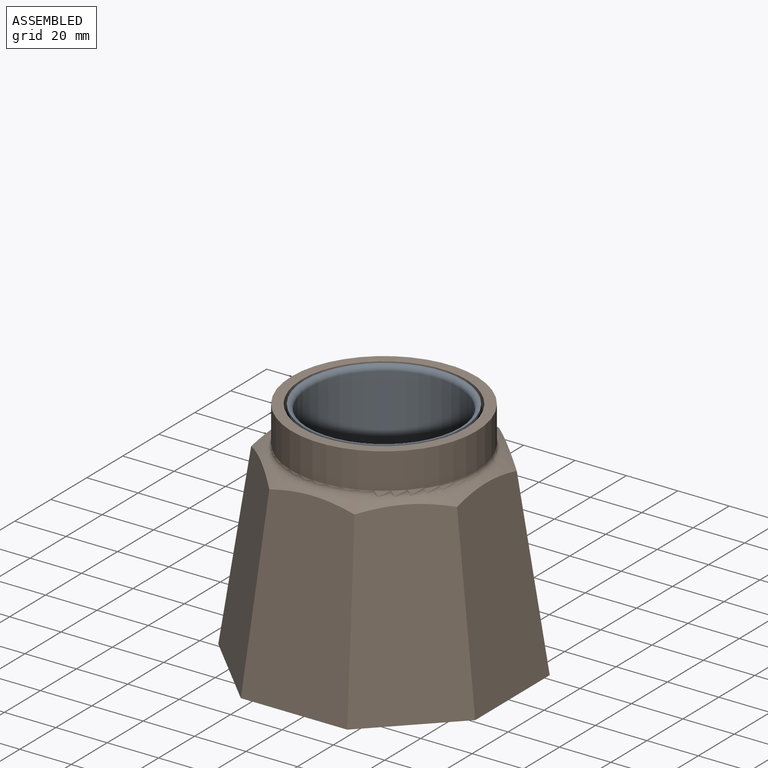
[diagram: assembled view]
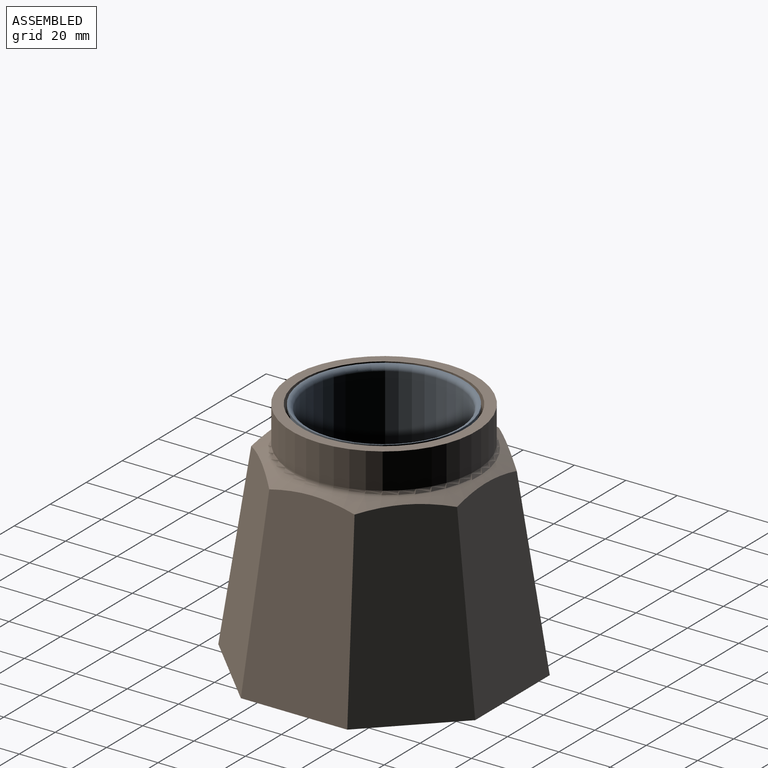
[diagram: assembled view, second angle]
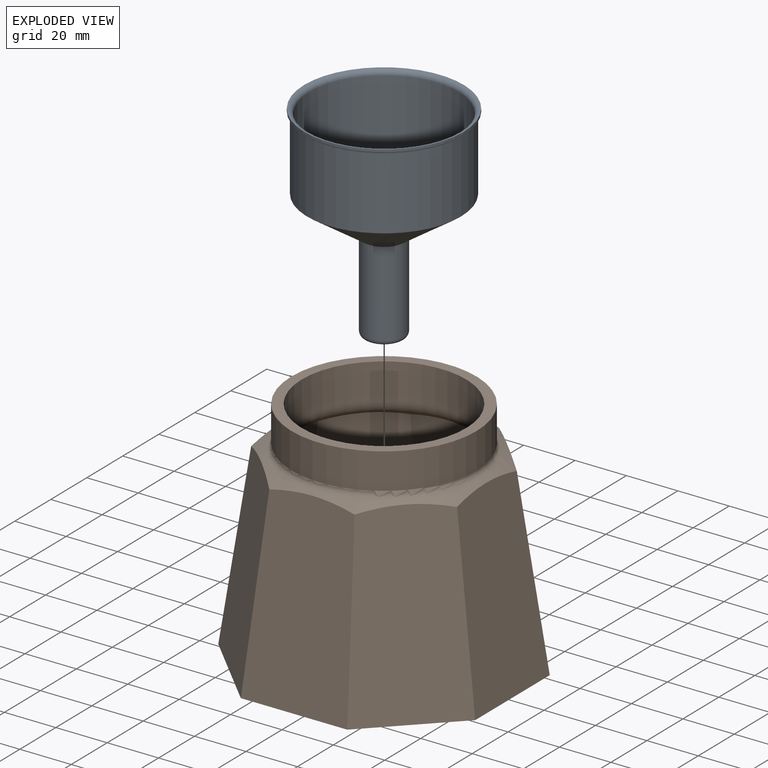
[diagram: exploded view]
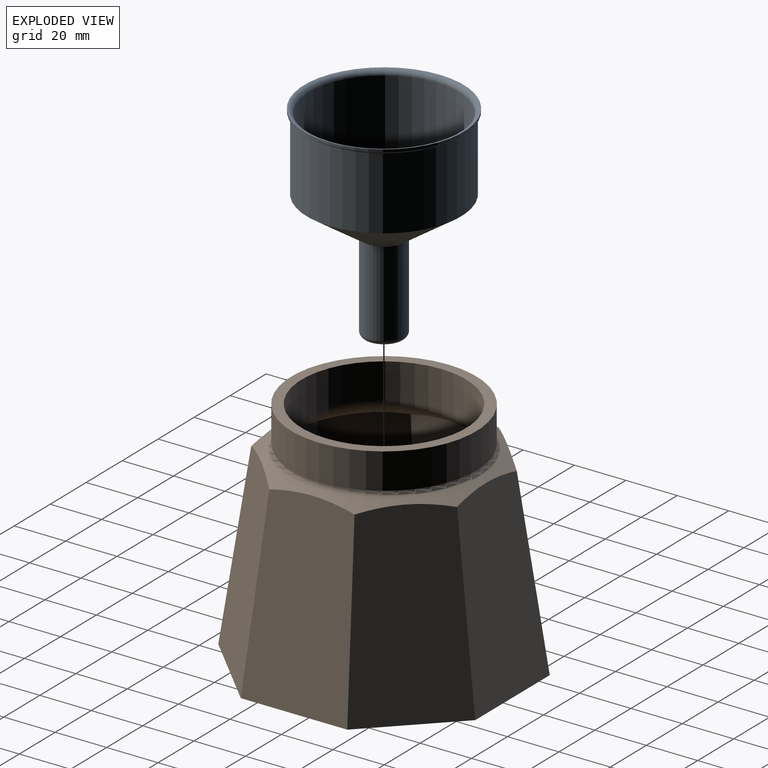
[diagram: exploded view, second angle]
ASSEMBLY  parts=2 mates=2
PART A: 113 faces, bbox 67.1x67.1x80 mm
  f0: cone r=30mm half-angle=55.7deg, axis (0,0,1), area 3178.8mm2, adj f1,f13
  f1: cylinder r=30mm len=60mm, axis (0,0,1), area 5277.9mm2, adj f0,f2
  f2: torus R=31mm, axis (0,0,1), area 299.7mm2, adj f1,f3
  f3: cylinder r=31mm len=62mm, axis (0,0,1), area 194.8mm2, adj f2,f4
  f4: torus R=31mm, axis (0,0,1), area 586.8mm2, adj f3,f5
  f5: cylinder r=29mm len=58mm, axis (0,0,1), area 4823.4mm2, adj f4,f15
  f6: cone r=7mm half-angle=55.7deg, axis (0,0,1), area 3011.4mm2, adj f7,f14
  f7: cylinder r=7mm len=33.53mm, axis (0,0,1), area 1474.7mm2, adj f6,f8
  f8: torus R=6mm, axis (0,0,1), area 65.5mm2, adj f7,f9
  f9: plane 12x12mm, normal (0,0,1), area 34.6mm2, adj f8,f10
  f10: cylinder r=5mm len=10mm, axis (0,0,1), area 31.4mm2, adj f9,f11
  f11: plane 12x12mm, normal (0,0,-1), area 34.6mm2, adj f10,f12
  f12: torus R=6mm, axis (0,0,1), area 143.6mm2, adj f11,f13
  f13: cylinder r=8mm len=33mm, axis (0,0,1), area 1658.8mm2, adj f0,f12
  f14: plane 58x58mm, normal (0,0,-1), area 2565.9mm2, adj f6,f16,f17,f18,f19,f20,f21,f22
  f15: plane 58x58mm, normal (0,0,1), area 2565.9mm2, adj f5,f16,f17,f18,f19,f20,f21,f22
  f16: cylinder r=0.5mm len=1mm, axis (0,0,1), area 3.1mm2, adj f14,f15
  f17: cylinder r=0.5mm len=1mm, axis (0,0,1), area 3.1mm2, adj f14,f15
  f18: cylinder r=0.5mm len=1mm, axis (0,0,1), area 3.1mm2, adj f14,f15
  f19: cylinder r=0.5mm len=1mm, axis (0,0,1), area 3.1mm2, adj f14,f15
  f20: cylinder r=0.5mm len=1mm, axis (0,0,1), area 3.1mm2, adj f14,f15
  f21: cylinder r=0.5mm len=1mm, axis (0,0,1), area 3.1mm2, adj f14,f15
  f22: cylinder r=0.5mm len=1mm, axis (0,0,1), area 3.1mm2, adj f14,f15
  f23: cylinder r=0.5mm len=1mm, axis (0,0,1), area 3.1mm2, adj f14,f15
  f24: cylinder r=0.5mm len=1mm, axis (0,0,1), area 3.1mm2, adj f14,f15
  f25: cylinder r=0.5mm len=1mm, axis (0,0,1), area 3.1mm2, adj f14,f15
  f26: cylinder r=0.5mm len=1mm, axis (0,0,1), area 3.1mm2, adj f14,f15
  f27: cylinder r=0.5mm len=1mm, axis (0,0,1), area 3.1mm2, adj f14,f15
  f28: cylinder r=0.5mm len=1mm, axis (0,0,1), area 3.1mm2, adj f14,f15
  f29: cylinder r=0.5mm len=1mm, axis (0,0,1), area 3.1mm2, adj f14,f15
  f30: cylinder r=0.5mm len=1mm, axis (0,0,1), area 3.1mm2, adj f14,f15
  f31: cylinder r=0.5mm len=1mm, axis (0,0,1), area 3.1mm2, adj f14,f15
  f32: cylinder r=0.5mm len=1mm, axis (0,0,1), area 3.1mm2, adj f14,f15
  f33: cylinder r=0.5mm len=1mm, axis (0,0,1), area 3.1mm2, adj f14,f15
  f34: cylinder r=0.5mm len=1mm, axis (0,0,1), area 3.1mm2, adj f14,f15
  f35: cylinder r=0.5mm len=1mm, axis (0,0,1), area 3.1mm2, adj f14,f15
  f36: cylinder r=0.5mm len=1mm, axis (0,0,1), area 3.1mm2, adj f14,f15
  f37: cylinder r=0.5mm len=1mm, axis (0,0,1), area 3.1mm2, adj f14,f15
  f38: cylinder r=0.5mm len=1mm, axis (0,0,1), area 3.1mm2, adj f14,f15
  f39: cylinder r=0.5mm len=1mm, axis (0,0,1), area 3.1mm2, adj f14,f15
  f40: cylinder r=0.5mm len=1mm, axis (0,0,1), area 3.1mm2, adj f14,f15
  f41: cylinder r=0.5mm len=1mm, axis (0,0,1), area 3.1mm2, adj f14,f15
  f42: cylinder r=0.5mm len=1mm, axis (0,0,1), area 3.1mm2, adj f14,f15
  f43: cylinder r=0.5mm len=1mm, axis (0,0,1), area 3.1mm2, adj f14,f15
  f44: cylinder r=0.5mm len=1mm, axis (0,0,1), area 3.1mm2, adj f14,f15
  f45: cylinder r=0.5mm len=1mm, axis (0,0,1), area 3.1mm2, adj f14,f15
  f46: cylinder r=0.5mm len=1mm, axis (0,0,1), area 3.1mm2, adj f14,f15
  f47: cylinder r=0.5mm len=1mm, axis (0,0,1), area 3.1mm2, adj f14,f15
  f48: cylinder r=0.5mm len=1mm, axis (0,0,1), area 3.1mm2, adj f14,f15
  f49: cylinder r=0.5mm len=1mm, axis (0,0,1), area 3.1mm2, adj f14,f15
  f50: cylinder r=0.5mm len=1mm, axis (0,0,1), area 3.1mm2, adj f14,f15
  f51: cylinder r=0.5mm len=1mm, axis (0,0,1), area 3.1mm2, adj f14,f15
  f52: cylinder r=0.5mm len=1mm, axis (0,0,1), area 3.1mm2, adj f14,f15
  f53: cylinder r=0.5mm len=1mm, axis (0,0,1), area 3.1mm2, adj f14,f15
  f54: cylinder r=0.5mm len=1mm, axis (0,0,1), area 3.1mm2, adj f14,f15
  f55: cylinder r=0.5mm len=1mm, axis (0,0,1), area 3.1mm2, adj f14,f15
  f56: cylinder r=0.5mm len=1mm, axis (0,0,1), area 3.1mm2, adj f14,f15
  f57: cylinder r=0.5mm len=1mm, axis (0,0,1), area 3.1mm2, adj f14,f15
  f58: cylinder r=0.5mm len=1mm, axis (0,0,1), area 3.1mm2, adj f14,f15
  f59: cylinder r=0.5mm len=1mm, axis (0,0,1), area 3.1mm2, adj f14,f15
  f60: cylinder r=0.5mm len=1mm, axis (0,0,1), area 3.1mm2, adj f14,f15
  f61: cylinder r=0.5mm len=1mm, axis (0,0,1), area 3.1mm2, adj f14,f15
  f62: cylinder r=0.5mm len=1mm, axis (0,0,1), area 3.1mm2, adj f14,f15
  f63: cylinder r=0.5mm len=1mm, axis (0,0,1), area 3.1mm2, adj f14,f15
  f64: cylinder r=0.5mm len=1mm, axis (0,0,1), area 3.1mm2, adj f14,f15
  f65: cylinder r=0.5mm len=1mm, axis (0,0,1), area 3.1mm2, adj f14,f15
  f66: cylinder r=0.5mm len=1mm, axis (0,0,1), area 3.1mm2, adj f14,f15
  f67: cylinder r=0.5mm len=1mm, axis (0,0,1), area 3.1mm2, adj f14,f15
  f68: cylinder r=0.5mm len=1mm, axis (0,0,1), area 3.1mm2, adj f14,f15
  f69: cylinder r=0.5mm len=1mm, axis (0,0,1), area 3.1mm2, adj f14,f15
  f70: cylinder r=0.5mm len=1mm, axis (0,0,1), area 3.1mm2, adj f14,f15
  f71: cylinder r=0.5mm len=1mm, axis (0,0,1), area 3.1mm2, adj f14,f15
  f72: cylinder r=0.5mm len=1mm, axis (0,0,1), area 3.1mm2, adj f14,f15
  f73: cylinder r=0.5mm len=1mm, axis (0,0,1), area 3.1mm2, adj f14,f15
  f74: cylinder r=0.5mm len=1mm, axis (0,0,1), area 3.1mm2, adj f14,f15
  f75: cylinder r=0.5mm len=1mm, axis (0,0,1), area 3.1mm2, adj f14,f15
  f76: cylinder r=0.5mm len=1mm, axis (0,0,1), area 3.1mm2, adj f14,f15
  f77: cylinder r=0.5mm len=1mm, axis (0,0,1), area 3.1mm2, adj f14,f15
  f78: cylinder r=0.5mm len=1mm, axis (0,0,1), area 3.1mm2, adj f14,f15
  f79: cylinder r=0.5mm len=1mm, axis (0,0,1), area 3.1mm2, adj f14,f15
  f80: cylinder r=0.5mm len=1mm, axis (0,0,1), area 3.1mm2, adj f14,f15
  f81: cylinder r=0.5mm len=1mm, axis (0,0,1), area 3.1mm2, adj f14,f15
  f82: cylinder r=0.5mm len=1mm, axis (0,0,1), area 3.1mm2, adj f14,f15
  f83: cylinder r=0.5mm len=1mm, axis (0,0,1), area 3.1mm2, adj f14,f15
  f84: cylinder r=0.5mm len=1mm, axis (0,0,1), area 3.1mm2, adj f14,f15
  f85: cylinder r=0.5mm len=1mm, axis (0,0,1), area 3.1mm2, adj f14,f15
  f86: cylinder r=0.5mm len=1mm, axis (0,0,1), area 3.1mm2, adj f14,f15
  f87: cylinder r=0.5mm len=1mm, axis (0,0,1), area 3.1mm2, adj f14,f15
  f88: cylinder r=0.5mm len=1mm, axis (0,0,1), area 3.1mm2, adj f14,f15
  f89: cylinder r=0.5mm len=1mm, axis (0,0,1), area 3.1mm2, adj f14,f15
  f90: cylinder r=0.5mm len=1mm, axis (0,0,1), area 3.1mm2, adj f14,f15
  f91: cylinder r=0.5mm len=1mm, axis (0,0,1), area 3.1mm2, adj f14,f15
  f92: cylinder r=0.5mm len=1mm, axis (0,0,1), area 3.1mm2, adj f14,f15
  f93: cylinder r=0.5mm len=1mm, axis (0,0,1), area 3.1mm2, adj f14,f15
  f94: cylinder r=0.5mm len=1mm, axis (0,0,1), area 3.1mm2, adj f14,f15
  f95: cylinder r=0.5mm len=1mm, axis (0,0,1), area 3.1mm2, adj f14,f15
  f96: cylinder r=0.5mm len=1mm, axis (0,0,1), area 3.1mm2, adj f14,f15
  f97: cylinder r=0.5mm len=1mm, axis (0,0,1), area 3.1mm2, adj f14,f15
  f98: cylinder r=0.5mm len=1mm, axis (0,0,1), area 3.1mm2, adj f14,f15
  f99: cylinder r=0.5mm len=1mm, axis (0,0,1), area 3.1mm2, adj f14,f15
  f100: cylinder r=0.5mm len=1mm, axis (0,0,1), area 3.1mm2, adj f14,f15
  f101: cylinder r=0.5mm len=1mm, axis (0,0,1), area 3.1mm2, adj f14,f15
  f102: cylinder r=0.5mm len=1mm, axis (0,0,1), area 3.1mm2, adj f14,f15
  f103: cylinder r=0.5mm len=1mm, axis (0,0,1), area 3.1mm2, adj f14,f15
  f104: cylinder r=0.5mm len=1mm, axis (0,0,1), area 3.1mm2, adj f14,f15
  f105: cylinder r=0.5mm len=1mm, axis (0,0,1), area 3.1mm2, adj f14,f15
  f106: cylinder r=0.5mm len=1mm, axis (0,0,1), area 3.1mm2, adj f14,f15
  f107: cylinder r=0.5mm len=1mm, axis (0,0,1), area 3.1mm2, adj f14,f15
  f108: cylinder r=0.5mm len=1mm, axis (0,0,1), area 3.1mm2, adj f14,f15
  f109: cylinder r=0.5mm len=1mm, axis (0,0,1), area 3.1mm2, adj f14,f15
  f110: cylinder r=0.5mm len=1mm, axis (0,0,1), area 3.1mm2, adj f14,f15
  f111: cylinder r=0.5mm len=1mm, axis (0,0,1), area 3.1mm2, adj f14,f15
  f112: cylinder r=0.5mm len=1mm, axis (0,0,1), area 3.1mm2, adj f14,f15
PART B: 25 faces, bbox 100x100x90 mm
  f0: plane 72.83x41.42mm, normal (0,0.99,0.14), area 2711.1mm2, adj f1,f7,f8,f9
  f1: plane 72.83x33.42mm, normal (-0.7,0.7,0.14), area 2711.1mm2, adj f0,f2,f8,f9
  f2: plane 72.83x41.42mm, normal (-0.99,0,0.14), area 2711.1mm2, adj f1,f3,f8,f9
  f3: plane 72.83x33.42mm, normal (-0.7,-0.7,0.14), area 2711.1mm2, adj f2,f4,f8,f9
  f4: plane 72.83x41.42mm, normal (0,-0.99,0.14), area 2711.1mm2, adj f3,f5,f8,f9
  f5: plane 72.83x33.42mm, normal (0.7,-0.7,0.14), area 2711.1mm2, adj f4,f6,f8,f9
  f6: plane 72.83x41.42mm, normal (0.99,0,0.14), area 2711.1mm2, adj f5,f7,f8,f9
  f7: plane 72.83x33.42mm, normal (0.7,0.7,0.14), area 2711.1mm2, adj f0,f6,f8,f9
  f8: plane 100x100mm, normal (0,0,-1), area 8284.3mm2, adj f0,f1,f2,f3,f4,f5,f6,f7
  f9: cone r=57.77mm half-angle=60deg, axis (0,0,-1), area 1114.2mm2, adj f0,f1,f2,f3,f4,f5,f6,f7
  f10: plane 72x72mm, normal (0,0,1), area 854.5mm2, adj f11,f23
  f11: cylinder r=36mm len=72mm, axis (0,0,1), area 3131.7mm2, adj f10,f12
  f12: torus R=38mm, axis (0,0,1), area 478.3mm2, adj f9,f11
  f13: plane 66.34x37.61mm, normal (0,-0.99,-0.14), area 2241.5mm2, adj f14,f20,f21,f22
  f14: plane 66.34x30.35mm, normal (0.7,-0.7,-0.14), area 2241.5mm2, adj f13,f15,f21,f22
  f15: plane 66.34x37.61mm, normal (0.99,0,-0.14), area 2241.5mm2, adj f14,f16,f21,f22
  f16: plane 66.34x30.35mm, normal (0.7,0.7,-0.14), area 2241.5mm2, adj f15,f17,f21,f22
  f17: plane 66.34x37.61mm, normal (0,0.99,-0.14), area 2241.5mm2, adj f16,f18,f21,f22
  f18: plane 66.34x30.35mm, normal (-0.7,0.7,-0.14), area 2241.5mm2, adj f17,f19,f21,f22
  f19: plane 66.34x37.61mm, normal (-0.99,0,-0.14), area 2241.5mm2, adj f18,f20,f21,f22
  f20: plane 66.34x30.35mm, normal (-0.7,-0.7,-0.14), area 2241.5mm2, adj f13,f19,f21,f22
  f21: plane 90.8x90.8mm, normal (0,0,1), area 6829.6mm2, adj f13,f14,f15,f16,f17,f18,f19,f20
  f22: cone r=55.77mm half-angle=60deg, axis (0,0,-1), area 560.6mm2, adj f13,f14,f15,f16,f17,f18,f19,f20
  f23: cylinder r=32mm len=64mm, axis (0,0,1), area 2783.8mm2, adj f10,f24
  f24: torus R=38mm, axis (0,0,1), area 1304.3mm2, adj f22,f23
PLACE A t=(-40.57,-2.46,77.44)mm
PLACE B t=(-40.57,-2.46,-12.56)mm fixed
MATE cylindrical A.f0 <-> B.f9  axis (0,0,1) through (-40.57,-2.46,62.21)mm
MATE fastened B.f9 <-> A.f0  axis (0,0,1) through (-40.57,-2.46,77.44)mm
